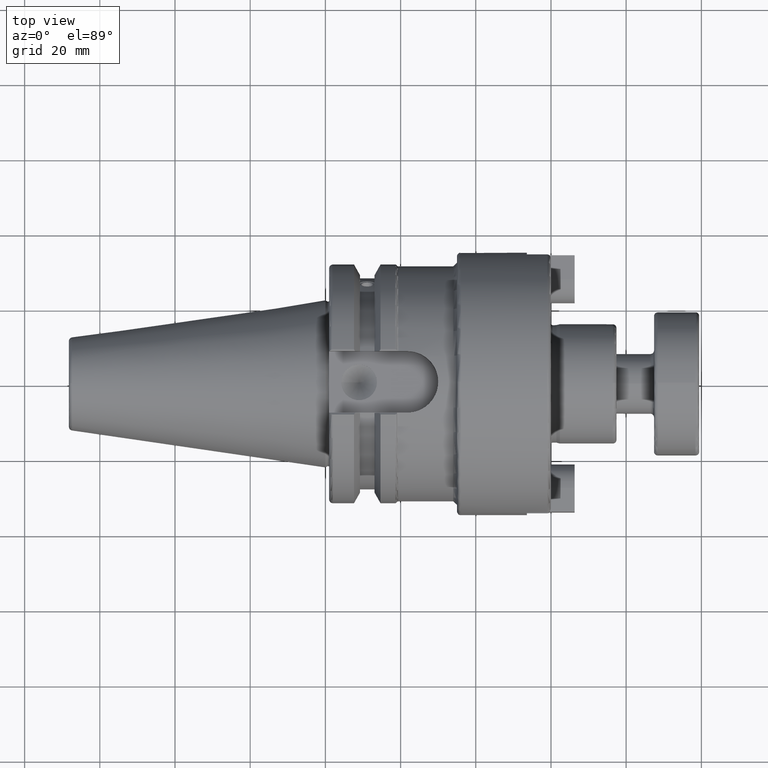
[diagram: clean part render]
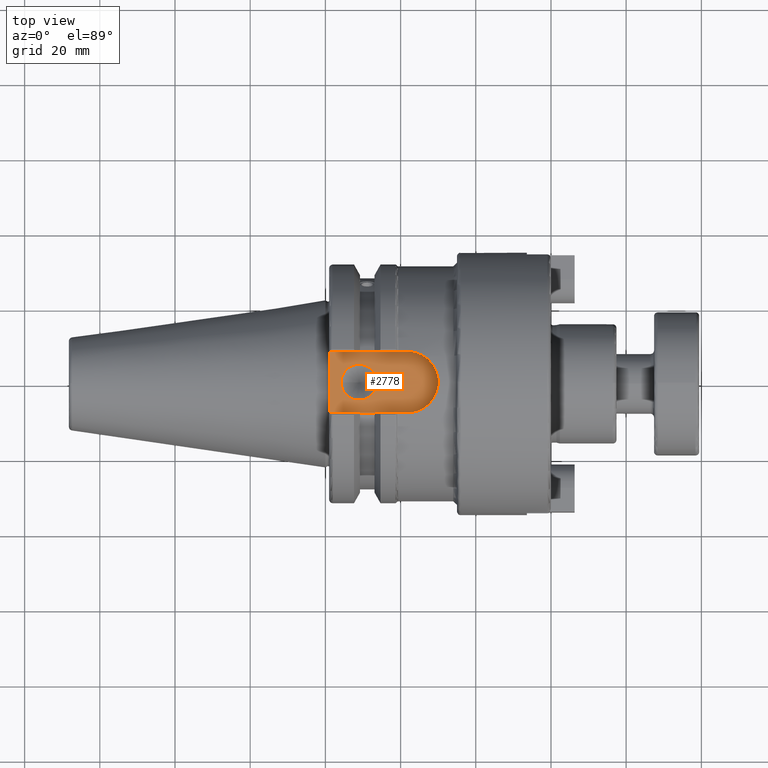
[diagram: same view with one face highlighted and labeled with its STEP entity id]
A machine part, top view. The second image highlights one B-rep face of the part: STEP entity #2778.
In plain terms, the highlighted planar face has unit normal (0, 0, 1).
Its self-contained STEP definition (entity closure, byte-faithful):
#112=FACE_BOUND('',#517,.T.);
#184=PLANE('',#3161);
#339=FACE_OUTER_BOUND('',#516,.T.);
#516=EDGE_LOOP('',(#2366,#2367,#2368,#2369));
#517=EDGE_LOOP('',(#2370));
#595=CIRCLE('',#2955,8.19);
#683=CIRCLE('',#3153,4.7625);
#783=LINE('',#4513,#956);
#824=LINE('',#4978,#997);
#838=LINE('',#5097,#1011);
#956=VECTOR('',#3460,10.);
#997=VECTOR('',#3721,10.);
#1011=VECTOR('',#3763,10.);
#1147=VERTEX_POINT('',#4246);
#1148=VERTEX_POINT('',#4248);
#1203=VERTEX_POINT('',#4511);
#1289=VERTEX_POINT('',#4977);
#1323=VERTEX_POINT('',#5156);
#1424=EDGE_CURVE('',#1148,#1147,#595,.T.);
#1497=EDGE_CURVE('',#1147,#1203,#783,.T.);
#1628=EDGE_CURVE('',#1289,#1148,#824,.T.);
#1660=EDGE_CURVE('',#1289,#1203,#838,.T.);
#1685=EDGE_CURVE('',#1323,#1323,#683,.T.);
#2366=ORIENTED_EDGE('',*,*,#1660,.F.);
#2367=ORIENTED_EDGE('',*,*,#1628,.T.);
#2368=ORIENTED_EDGE('',*,*,#1424,.T.);
#2369=ORIENTED_EDGE('',*,*,#1497,.T.);
#2370=ORIENTED_EDGE('',*,*,#1685,.T.);
#2778=ADVANCED_FACE('',(#339,#112),#184,.T.);
#2955=AXIS2_PLACEMENT_3D('',#4249,#3324,#3325);
#3153=AXIS2_PLACEMENT_3D('',#5157,#3821,#3822);
#3161=AXIS2_PLACEMENT_3D('',#5166,#3838,#3839);
#3324=DIRECTION('center_axis',(0.,0.,1.));
#3325=DIRECTION('ref_axis',(1.08446693492079E-15,-1.,0.));
#3460=DIRECTION('',(-1.,-1.06700915389251E-16,0.));
#3721=DIRECTION('',(1.,1.60051373083876E-16,0.));
#3763=DIRECTION('',(0.,1.,0.));
#3821=DIRECTION('center_axis',(0.,0.,-1.));
#3822=DIRECTION('ref_axis',(1.,0.,0.));
#3838=DIRECTION('center_axis',(0.,0.,1.));
#3839=DIRECTION('ref_axis',(1.,0.,0.));
#4246=CARTESIAN_POINT('',(21.81,8.19,25.));
#4248=CARTESIAN_POINT('',(21.81,-8.19000000000001,25.));
#4249=CARTESIAN_POINT('Origin',(21.81,3.78117769356553E-15,25.));
#4511=CARTESIAN_POINT('',(0.999999999999996,8.19,25.));
#4513=CARTESIAN_POINT('',(21.81,8.19,25.));
#4977=CARTESIAN_POINT('',(1.00000000000001,-8.19000000000001,25.));
#4978=CARTESIAN_POINT('',(1.00000000000001,-8.19000000000001,25.));
#5097=CARTESIAN_POINT('',(1.,15.875,25.));
#5156=CARTESIAN_POINT('',(4.1966,-5.83238038093927E-16,25.));
#5157=CARTESIAN_POINT('Origin',(8.9591,0.,25.));
#5166=CARTESIAN_POINT('Origin',(14.62,0.,25.));